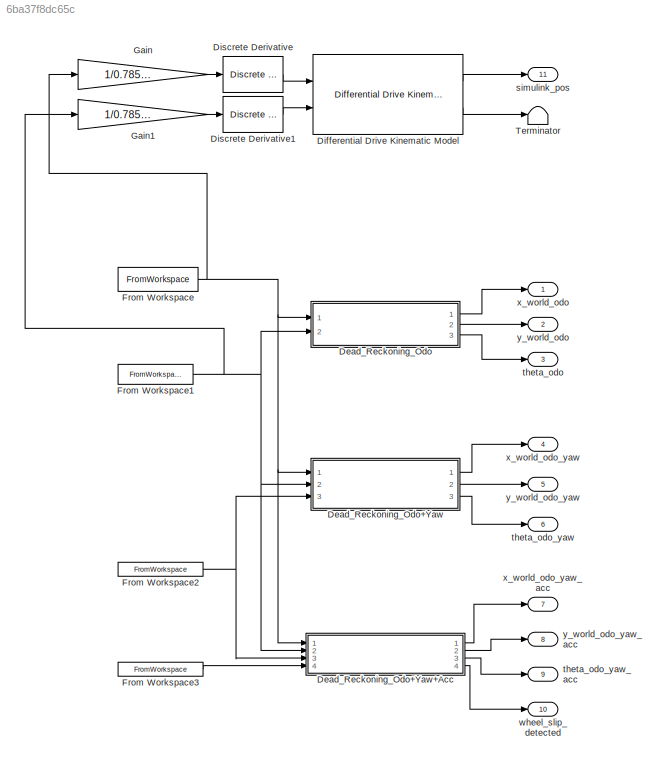
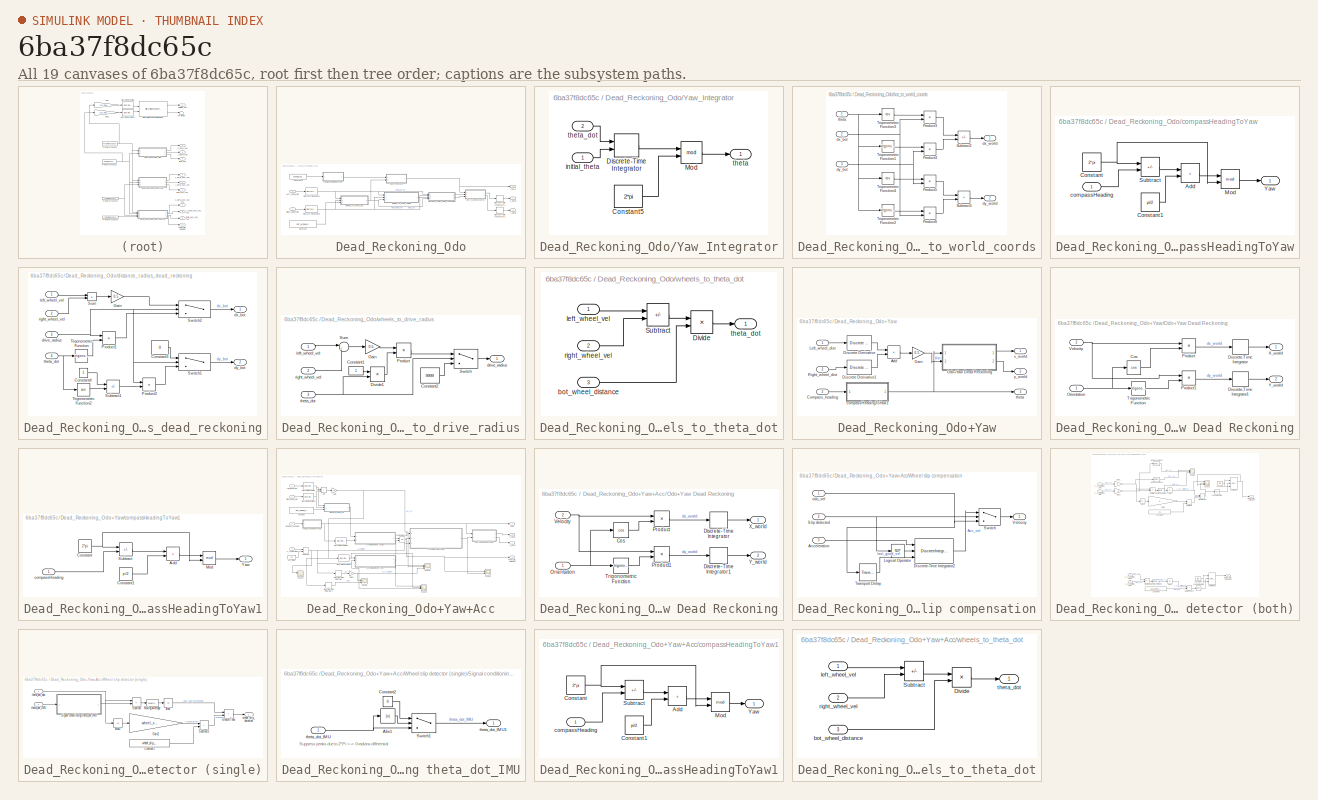
[diagram: thumbnail index - all 19 canvases of the model, root first then tree order]
MODEL slx_6ba37f8dc65c
KIND model
CONFIG AbsTol = auto
CONFIG EnableMultiTasking = off
CONFIG FixedStep = 0.1
CONFIG MaxStep = auto
CONFIG MinStep = auto
CONFIG RelTol = 1e-3
CONFIG SampleTimeConstraint = Unconstrained
CONFIG Solver = FixedStepAuto
CONFIG SolverName = FixedStepAuto
CONFIG StartTime = 0.0
CONFIG StopTime = 31.5
BLOCK [SubSystem] Dead_Reckoning_Odo
  Ports = [2, 3]
  RequestExecContextInheritance = off
BLOCK [SubSystem] Dead_Reckoning_Odo+Yaw
  Ports = [3, 3]
  RequestExecContextInheritance = off
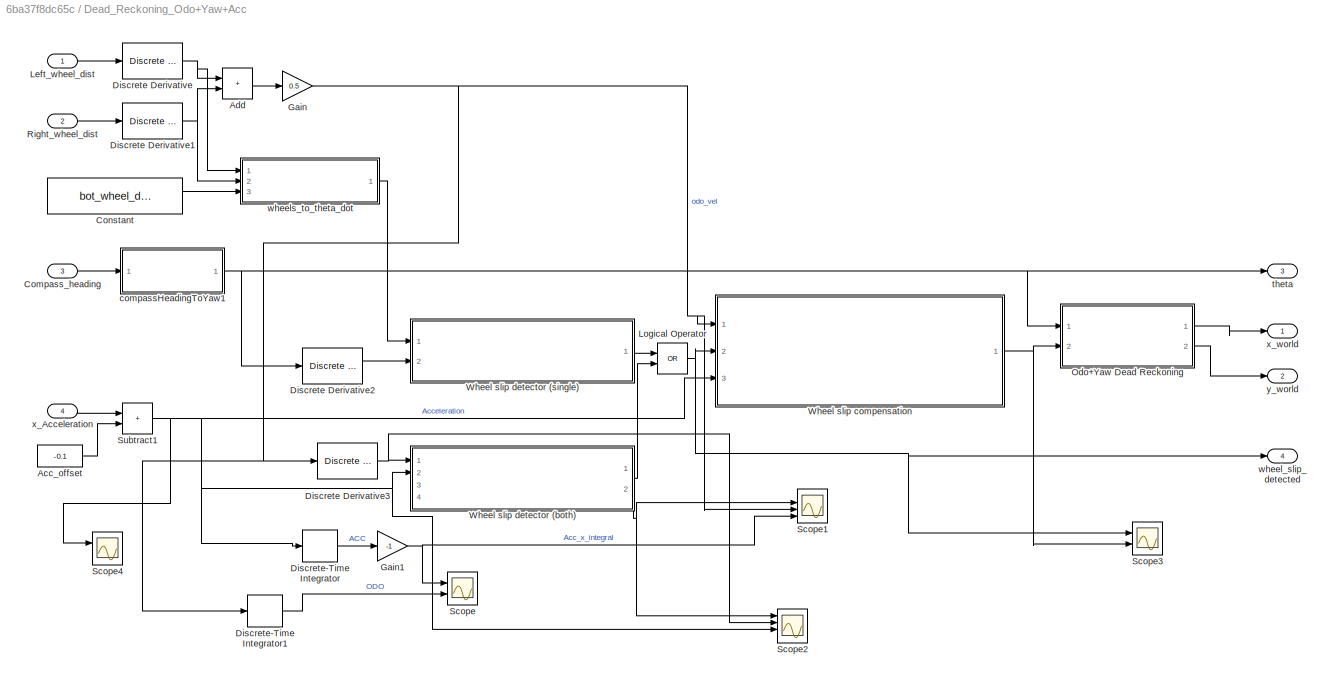
BLOCK [SubSystem] Dead_Reckoning_Odo+Yaw+Acc
  Ports = [4, 4]
  RequestExecContextInheritance = off
BLOCK [Constant] Dead_Reckoning_Odo+Yaw+Acc/Acc_offset
  Value = -0.1
BLOCK [Sum] Dead_Reckoning_Odo+Yaw+Acc/Add
  IconShape = rectangular
  Ports = [2, 1]
BLOCK [Inport] Dead_Reckoning_Odo+Yaw+Acc/Compass_heading
  Port = 3
BLOCK [Constant] Dead_Reckoning_Odo+Yaw+Acc/Constant
  Value = bot_wheel_distance
BLOCK [Reference] Dead_Reckoning_Odo+Yaw+Acc/Discrete Derivative  REF=simulink/Discrete/Discrete Derivative
  Ports = [1, 1]
  SourceBlock = simulink/Discrete/Discrete Derivative
  SourceProductBaseCode = SL
  SourceType = Discrete Derivative
BLOCK [Reference] Dead_Reckoning_Odo+Yaw+Acc/Discrete Derivative1  REF=simulink/Discrete/Discrete Derivative
  Ports = [1, 1]
  SourceBlock = simulink/Discrete/Discrete Derivative
  SourceProductBaseCode = SL
  SourceType = Discrete Derivative
BLOCK [Reference] Dead_Reckoning_Odo+Yaw+Acc/Discrete Derivative2  REF=simulink/Discrete/Discrete Derivative
  Ports = [1, 1]
  SourceBlock = simulink/Discrete/Discrete Derivative
  SourceProductBaseCode = SL
  SourceType = Discrete Derivative
BLOCK [Reference] Dead_Reckoning_Odo+Yaw+Acc/Discrete Derivative3  REF=simulink/Discrete/Discrete Derivative
  Ports = [1, 1]
  SourceBlock = simulink/Discrete/Discrete Derivative
  SourceProductBaseCode = SL
  SourceType = Discrete Derivative
BLOCK [DiscreteIntegrator] Dead_Reckoning_Odo+Yaw+Acc/Discrete-Time Integrator
  ICPrevOutput = DiscIntNeverNeededParam
  ICPrevScaledInput = DiscIntNeverNeededParam
  InitialConditionSetting = Auto
  Ports = [1, 1]
  SampleTime = -1
BLOCK [DiscreteIntegrator] Dead_Reckoning_Odo+Yaw+Acc/Discrete-Time Integrator1
  ICPrevOutput = DiscIntNeverNeededParam
  ICPrevScaledInput = DiscIntNeverNeededParam
  InitialConditionSetting = Auto
  Ports = [1, 1]
  SampleTime = -1
BLOCK [Gain] Dead_Reckoning_Odo+Yaw+Acc/Gain
  Gain = 0.5
BLOCK [Gain] Dead_Reckoning_Odo+Yaw+Acc/Gain1
  Gain = -1
BLOCK [Inport] Dead_Reckoning_Odo+Yaw+Acc/Left_wheel_dist
BLOCK [Logic] Dead_Reckoning_Odo+Yaw+Acc/Logical Operator
  AllPortsSameDT = off
  Operator = OR
  OutDataTypeStr = boolean
  Ports = [2, 1]
BLOCK [SubSystem] Dead_Reckoning_Odo+Yaw+Acc/Odo+Yaw Dead Reckoning
  Ports = [2, 2]
  RequestExecContextInheritance = off
BLOCK [Trigonometry] Dead_Reckoning_Odo+Yaw+Acc/Odo+Yaw Dead Reckoning/Cos
  Operator = cos
  Ports = [1, 1]
BLOCK [DiscreteIntegrator] Dead_Reckoning_Odo+Yaw+Acc/Odo+Yaw Dead Reckoning/Discrete-Time Integrator
  ICPrevOutput = DiscIntNeverNeededParam
  ICPrevScaledInput = DiscIntNeverNeededParam
  InitialConditionSetting = Auto
  Ports = [1, 1]
  SampleTime = -1
BLOCK [DiscreteIntegrator] Dead_Reckoning_Odo+Yaw+Acc/Odo+Yaw Dead Reckoning/Discrete-Time Integrator1
  ICPrevOutput = DiscIntNeverNeededParam
  ICPrevScaledInput = DiscIntNeverNeededParam
  InitialConditionSetting = Auto
  Ports = [1, 1]
  SampleTime = -1
BLOCK [Inport] Dead_Reckoning_Odo+Yaw+Acc/Odo+Yaw Dead Reckoning/Orientation
BLOCK [Product] Dead_Reckoning_Odo+Yaw+Acc/Odo+Yaw Dead Reckoning/Product
  Ports = [2, 1]
BLOCK [Product] Dead_Reckoning_Odo+Yaw+Acc/Odo+Yaw Dead Reckoning/Product1
  Ports = [2, 1]
BLOCK [Trigonometry] Dead_Reckoning_Odo+Yaw+Acc/Odo+Yaw Dead Reckoning/Trigonometric Function
  Ports = [1, 1]
BLOCK [Inport] Dead_Reckoning_Odo+Yaw+Acc/Odo+Yaw Dead Reckoning/Velocity
  Port = 2
BLOCK [Outport] Dead_Reckoning_Odo+Yaw+Acc/Odo+Yaw Dead Reckoning/X_world
BLOCK [Outport] Dead_Reckoning_Odo+Yaw+Acc/Odo+Yaw Dead Reckoning/Y_world
  Port = 2
BLOCK [Inport] Dead_Reckoning_Odo+Yaw+Acc/Right_wheel_dist
  Port = 2
BLOCK [Scope] Dead_Reckoning_Odo+Yaw+Acc/Scope
  Floating = off
  NumInputPorts = 2
  Ports = [2]
  ScopeSpecificationString = Simulink.scopes.TimeScopeBlockCfg('CurrentConfiguration', extmgr.ConfigurationSet(extmgr.Configuration('Core','General UI',true),extmgr.Configuration('Core','Source UI',true),extmgr.Configuration('Sources','WiredSimulink',true,'DataLoggingVariableName','ScopeData1'),extmgr.Configuration('Visuals','Time Domain',true,'SerializedDisplays',{struct('MinYLimReal','-6.11663','MaxYLimReal','6.31768','YLab...<+1404ch>
BLOCK [Scope] Dead_Reckoning_Odo+Yaw+Acc/Scope1
  Floating = off
  NumInputPorts = 4
  Ports = [4]
  ScopeSpecificationString = Simulink.scopes.TimeScopeBlockCfg('CurrentConfiguration', extmgr.ConfigurationSet(extmgr.Configuration('Core','General UI',true),extmgr.Configuration('Core','Source UI',true),extmgr.Configuration('Sources','WiredSimulink',true,'DataLoggingVariableName','ScopeData3'),extmgr.Configuration('Visuals','Time Domain',true,'SerializedDisplays',{struct('MinYLimReal','-0.26246','MaxYLimReal','2.16294','YLab...<+1965ch>
BLOCK [Scope] Dead_Reckoning_Odo+Yaw+Acc/Scope2
  Floating = off
  NumInputPorts = 4
  Ports = [4]
  ScopeSpecificationString = Simulink.scopes.TimeScopeBlockCfg('CurrentConfiguration', extmgr.ConfigurationSet(extmgr.Configuration('Core','General UI',true),extmgr.Configuration('Core','Source UI',true),extmgr.Configuration('Sources','WiredSimulink',true,'DataLoggingVariableName','ScopeData4'),extmgr.Configuration('Visuals','Time Domain',true,'SerializedDisplays',{struct('MinYLimReal','-0.26246','MaxYLimReal','2.16294','YLab...<+1976ch>
BLOCK [Scope] Dead_Reckoning_Odo+Yaw+Acc/Scope3
  Floating = off
  NumInputPorts = 2
  Ports = [2]
  ScopeSpecificationString = Simulink.scopes.TimeScopeBlockCfg('CurrentConfiguration', extmgr.ConfigurationSet(extmgr.Configuration('Core','General UI',true),extmgr.Configuration('Core','Source UI',true),extmgr.Configuration('Sources','WiredSimulink',true,'DataLoggingVariableName','ScopeData2'),extmgr.Configuration('Visuals','Time Domain',true,'SerializedDisplays',{struct('MinYLimReal','-0.42637','MaxYLimReal','1.15849','YLab...<+1401ch>
BLOCK [Scope] Dead_Reckoning_Odo+Yaw+Acc/Scope4
  Floating = off
  NumInputPorts = 2
  Ports = [2]
  ScopeSpecificationString = Simulink.scopes.TimeScopeBlockCfg('CurrentConfiguration', extmgr.ConfigurationSet(extmgr.Configuration('Core','General UI',true),extmgr.Configuration('Core','Source UI',true),extmgr.Configuration('Sources','WiredSimulink',true,'DataLoggingVariableName','ScopeData3'),extmgr.Configuration('Visuals','Time Domain',true,'SerializedDisplays',{struct('MinYLimReal','-1.72105','MaxYLimReal','3.57761','YLab...<+1383ch>
BLOCK [Sum] Dead_Reckoning_Odo+Yaw+Acc/Subtract1
  IconShape = rectangular
  Ports = [2, 1]
BLOCK [SubSystem] Dead_Reckoning_Odo+Yaw+Acc/Wheel slip compensation
  Ports = [3, 1]
  RequestExecContextInheritance = off
BLOCK [Inport] Dead_Reckoning_Odo+Yaw+Acc/Wheel slip compensation/Acceleration
  Port = 3
BLOCK [DiscreteIntegrator] Dead_Reckoning_Odo+Yaw+Acc/Wheel slip compensation/Discrete-Time Integrator2
  ExternalReset = level
  ICPrevOutput = DiscIntNeverNeededParam
  ICPrevScaledInput = DiscIntNeverNeededParam
  InitialConditionSetting = Auto
  InitialConditionSource = external
  Ports = [3, 1]
  SampleTime = -1
BLOCK [Logic] Dead_Reckoning_Odo+Yaw+Acc/Wheel slip compensation/Logical Operator
  AllPortsSameDT = off
  Operator = NOT
  OutDataTypeStr = boolean
  Ports = [1, 1]
BLOCK [Inport] Dead_Reckoning_Odo+Yaw+Acc/Wheel slip compensation/Slip detected
  Port = 2
BLOCK [Switch] Dead_Reckoning_Odo+Yaw+Acc/Wheel slip compensation/Switch
  Criteria = u2 > Threshold
  InputSameDT = off
  SaturateOnIntegerOverflow = off
BLOCK [TransportDelay] Dead_Reckoning_Odo+Yaw+Acc/Wheel slip compensation/Transport Delay
  DelayTime = 0.5
  Ports = [1, 1]
BLOCK [Outport] Dead_Reckoning_Odo+Yaw+Acc/Wheel slip compensation/Velocity
BLOCK [Inport] Dead_Reckoning_Odo+Yaw+Acc/Wheel slip compensation/odo_vel
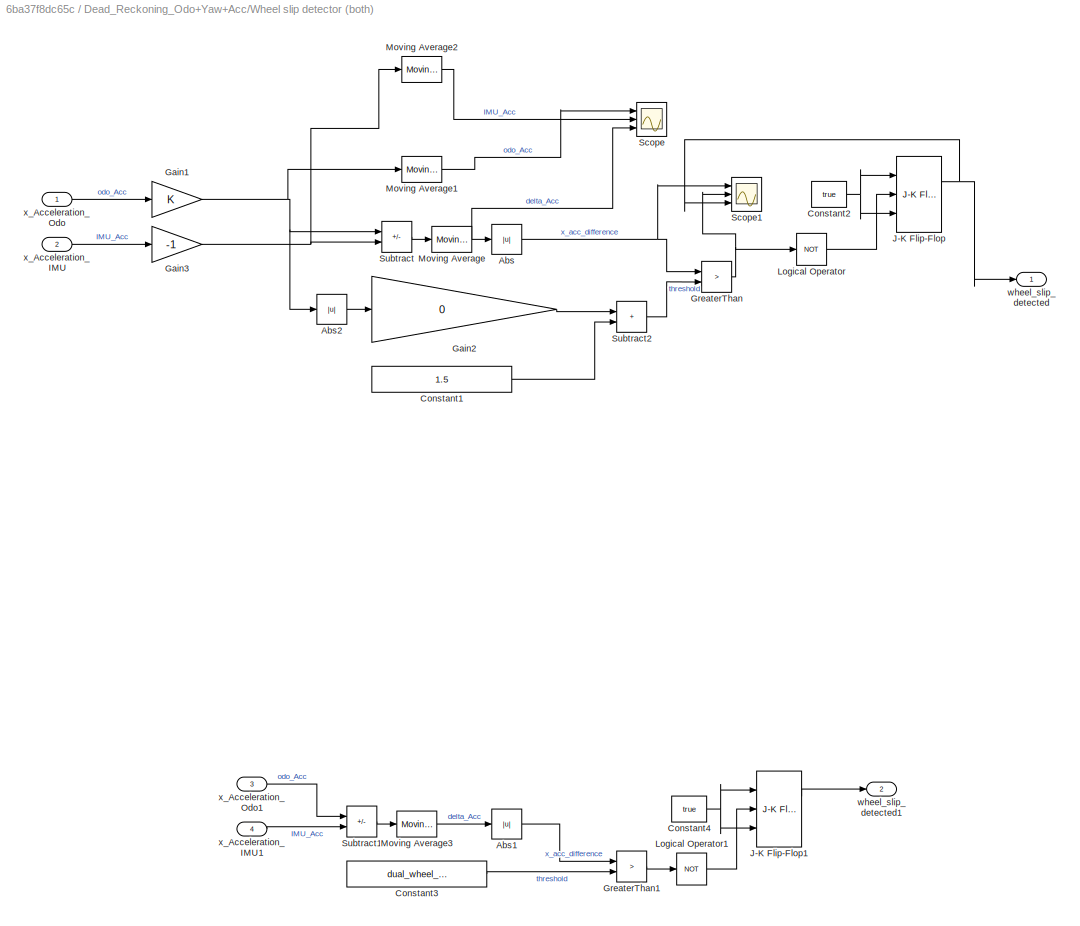
BLOCK [SubSystem] Dead_Reckoning_Odo+Yaw+Acc/Wheel slip detector (both)
  Ports = [4, 2]
  RequestExecContextInheritance = off
BLOCK [Abs] Dead_Reckoning_Odo+Yaw+Acc/Wheel slip detector (both)/Abs
  SaturateOnIntegerOverflow = off
BLOCK [Abs] Dead_Reckoning_Odo+Yaw+Acc/Wheel slip detector (both)/Abs1
  SaturateOnIntegerOverflow = off
BLOCK [Abs] Dead_Reckoning_Odo+Yaw+Acc/Wheel slip detector (both)/Abs2
  SaturateOnIntegerOverflow = off
BLOCK [Constant] Dead_Reckoning_Odo+Yaw+Acc/Wheel slip detector (both)/Constant1
  Value = 1.5
BLOCK [Constant] Dead_Reckoning_Odo+Yaw+Acc/Wheel slip detector (both)/Constant2
  Value = true
BLOCK [Constant] Dead_Reckoning_Odo+Yaw+Acc/Wheel slip detector (both)/Constant3
  Value = dual_wheel_slip_acc_thres
BLOCK [Constant] Dead_Reckoning_Odo+Yaw+Acc/Wheel slip detector (both)/Constant4
  Value = true
BLOCK [Gain] Dead_Reckoning_Odo+Yaw+Acc/Wheel slip detector (both)/Gain1
BLOCK [Gain] Dead_Reckoning_Odo+Yaw+Acc/Wheel slip detector (both)/Gain2
  Gain = 0
BLOCK [Gain] Dead_Reckoning_Odo+Yaw+Acc/Wheel slip detector (both)/Gain3
  Gain = -1
BLOCK [RelationalOperator] Dead_Reckoning_Odo+Yaw+Acc/Wheel slip detector (both)/GreaterThan
  InputSameDT = off
  Operator = >
  OutDataTypeStr = boolean
  Ports = [2, 1]
  RndMeth = Simplest
BLOCK [RelationalOperator] Dead_Reckoning_Odo+Yaw+Acc/Wheel slip detector (both)/GreaterThan1
  InputSameDT = off
  Operator = >
  OutDataTypeStr = boolean
  Ports = [2, 1]
  RndMeth = Simplest
BLOCK [Reference] Dead_Reckoning_Odo+Yaw+Acc/Wheel slip detector (both)/J-K Flip-Flop  REF=simulink_extras/Flip Flops/J-K
Flip-Flop
  Ports = [3, 2]
  SourceBlock = simulink_extras/Flip Flops/J-K\nFlip-Flop
  SourceProductBaseCode = SL
  SourceType = JKFlipFlop
BLOCK [Reference] Dead_Reckoning_Odo+Yaw+Acc/Wheel slip detector (both)/J-K Flip-Flop1  REF=simulink_extras/Flip Flops/J-K
Flip-Flop
  Ports = [3, 2]
  SourceBlock = simulink_extras/Flip Flops/J-K\nFlip-Flop
  SourceProductBaseCode = SL
  SourceType = JKFlipFlop
BLOCK [Logic] Dead_Reckoning_Odo+Yaw+Acc/Wheel slip detector (both)/Logical Operator
  AllPortsSameDT = off
  Operator = NOT
  OutDataTypeStr = boolean
  Ports = [1, 1]
BLOCK [Logic] Dead_Reckoning_Odo+Yaw+Acc/Wheel slip detector (both)/Logical Operator1
  AllPortsSameDT = off
  Operator = NOT
  OutDataTypeStr = boolean
  Ports = [1, 1]
BLOCK [Reference] Dead_Reckoning_Odo+Yaw+Acc/Wheel slip detector (both)/Moving Average  REF=dspstat3/Moving
Average
  Ports = [1, 1]
  SourceBlock = dspstat3/Moving\nAverage
  SourceProductBaseCode = DS
  SourceType = dsp.simulink.MovingAverage
BLOCK [Reference] Dead_Reckoning_Odo+Yaw+Acc/Wheel slip detector (both)/Moving Average1  REF=dspstat3/Moving
Average
  Ports = [1, 1]
  SourceBlock = dspstat3/Moving\nAverage
  SourceProductBaseCode = DS
  SourceType = dsp.simulink.MovingAverage
BLOCK [Reference] Dead_Reckoning_Odo+Yaw+Acc/Wheel slip detector (both)/Moving Average2  REF=dspstat3/Moving
Average
  Ports = [1, 1]
  SourceBlock = dspstat3/Moving\nAverage
  SourceProductBaseCode = DS
  SourceType = dsp.simulink.MovingAverage
BLOCK [Reference] Dead_Reckoning_Odo+Yaw+Acc/Wheel slip detector (both)/Moving Average3  REF=dspstat3/Moving
Average
  Ports = [1, 1]
  SourceBlock = dspstat3/Moving\nAverage
  SourceProductBaseCode = DS
  SourceType = dsp.simulink.MovingAverage
BLOCK [Scope] Dead_Reckoning_Odo+Yaw+Acc/Wheel slip detector (both)/Scope
  Floating = off
  NumInputPorts = 3
  Ports = [3]
  ScopeSpecificationString = Simulink.scopes.TimeScopeBlockCfg('CurrentConfiguration', extmgr.ConfigurationSet(extmgr.Configuration('Core','General UI',true,'FigureColor',[1 1 1]),extmgr.Configuration('Core','Source UI',true),extmgr.Configuration('Sources','WiredSimulink',true,'DataLoggingVariableName','ScopeData1'),extmgr.Configuration('Visuals','Time Domain',true,'SerializedDisplays',{struct('MinYLimReal','-3.93387','MaxYLi...<+1865ch>
BLOCK [Scope] Dead_Reckoning_Odo+Yaw+Acc/Wheel slip detector (both)/Scope1
  Floating = off
  NumInputPorts = 3
  Ports = [3]
  ScopeSpecificationString = Simulink.scopes.TimeScopeBlockCfg('CurrentConfiguration', extmgr.ConfigurationSet(extmgr.Configuration('Core','General UI',true),extmgr.Configuration('Core','Source UI',true),extmgr.Configuration('Sources','WiredSimulink',true,'DataLoggingVariableName','ScopeData2'),extmgr.Configuration('Visuals','Time Domain',true,'SerializedDisplays',{struct('MinYLimReal','-0.69953','MaxYLimReal','6.29575','YLab...<+1478ch>
BLOCK [Sum] Dead_Reckoning_Odo+Yaw+Acc/Wheel slip detector (both)/Subtract
  IconShape = rectangular
  Inputs = +-
  Ports = [2, 1]
BLOCK [Sum] Dead_Reckoning_Odo+Yaw+Acc/Wheel slip detector (both)/Subtract1
  IconShape = rectangular
  Inputs = +-
  Ports = [2, 1]
BLOCK [Sum] Dead_Reckoning_Odo+Yaw+Acc/Wheel slip detector (both)/Subtract2
  IconShape = rectangular
  Ports = [2, 1]
BLOCK [Outport] Dead_Reckoning_Odo+Yaw+Acc/Wheel slip detector (both)/wheel_slip_detected
BLOCK [Outport] Dead_Reckoning_Odo+Yaw+Acc/Wheel slip detector (both)/wheel_slip_detected1
  Port = 2
BLOCK [Inport] Dead_Reckoning_Odo+Yaw+Acc/Wheel slip detector (both)/x_Acceleration_IMU
  Port = 2
BLOCK [Inport] Dead_Reckoning_Odo+Yaw+Acc/Wheel slip detector (both)/x_Acceleration_IMU1
  Port = 4
BLOCK [Inport] Dead_Reckoning_Odo+Yaw+Acc/Wheel slip detector (both)/x_Acceleration_Odo
BLOCK [Inport] Dead_Reckoning_Odo+Yaw+Acc/Wheel slip detector (both)/x_Acceleration_Odo1
  Port = 3
BLOCK [SubSystem] Dead_Reckoning_Odo+Yaw+Acc/Wheel slip detector (single)
  Ports = [2, 1]
  RequestExecContextInheritance = off
BLOCK [Abs] Dead_Reckoning_Odo+Yaw+Acc/Wheel slip detector (single)/Abs
  SaturateOnIntegerOverflow = off
BLOCK [Abs] Dead_Reckoning_Odo+Yaw+Acc/Wheel slip detector (single)/Abs2
  SaturateOnIntegerOverflow = off
BLOCK [Constant] Dead_Reckoning_Odo+Yaw+Acc/Wheel slip detector (single)/Constant1
  Value = wheel_slip_detection_thres
BLOCK [Gain] Dead_Reckoning_Odo+Yaw+Acc/Wheel slip detector (single)/Gain2
  Gain = wheel_slip_detection_thres_factor
BLOCK [RelationalOperator] Dead_Reckoning_Odo+Yaw+Acc/Wheel slip detector (single)/GreaterThan
  InputSameDT = off
  Operator = >
  OutDataTypeStr = boolean
  Ports = [2, 1]
  RndMeth = Simplest
BLOCK [Reference] Dead_Reckoning_Odo+Yaw+Acc/Wheel slip detector (single)/Moving Average  REF=dspstat3/Moving
Average
  Ports = [1, 1]
  SourceBlock = dspstat3/Moving\nAverage
  SourceProductBaseCode = DS
  SourceType = dsp.simulink.MovingAverage
BLOCK [SubSystem] Dead_Reckoning_Odo+Yaw+Acc/Wheel slip detector (single)/Signal conditioning theta_dot_IMU
  Ports = [1, 1]
  RequestExecContextInheritance = off
BLOCK [Abs] Dead_Reckoning_Odo+Yaw+Acc/Wheel slip detector (single)/Signal conditioning theta_dot_IMU/Abs1
  SaturateOnIntegerOverflow = off
BLOCK [Constant] Dead_Reckoning_Odo+Yaw+Acc/Wheel slip detector (single)/Signal conditioning theta_dot_IMU/Constant2
  Value = 0
BLOCK [Switch] Dead_Reckoning_Odo+Yaw+Acc/Wheel slip detector (single)/Signal conditioning theta_dot_IMU/Switch1
  Criteria = u2 > Threshold
  InputSameDT = off
  SaturateOnIntegerOverflow = off
  Threshold = 2
BLOCK [Inport] Dead_Reckoning_Odo+Yaw+Acc/Wheel slip detector (single)/Signal conditioning theta_dot_IMU/theta_dot_IMU
BLOCK [Outport] Dead_Reckoning_Odo+Yaw+Acc/Wheel slip detector (single)/Signal conditioning theta_dot_IMU/theta_dot_IMU1
BLOCK [Sum] Dead_Reckoning_Odo+Yaw+Acc/Wheel slip detector (single)/Subtract
  IconShape = rectangular
  Inputs = +-
  Ports = [2, 1]
BLOCK [Sum] Dead_Reckoning_Odo+Yaw+Acc/Wheel slip detector (single)/Subtract2
  IconShape = rectangular
  Ports = [2, 1]
BLOCK [Inport] Dead_Reckoning_Odo+Yaw+Acc/Wheel slip detector (single)/theta_dot_IMU
  Port = 2
BLOCK [Inport] Dead_Reckoning_Odo+Yaw+Acc/Wheel slip detector (single)/theta_dot_odo
BLOCK [Outport] Dead_Reckoning_Odo+Yaw+Acc/Wheel slip detector (single)/wheel_slip_detected
BLOCK [SubSystem] Dead_Reckoning_Odo+Yaw+Acc/compassHeadingToYaw1
  Ports = [1, 1]
  RequestExecContextInheritance = off
BLOCK [Sum] Dead_Reckoning_Odo+Yaw+Acc/compassHeadingToYaw1/Add
  IconShape = rectangular
  Ports = [2, 1]
BLOCK [Constant] Dead_Reckoning_Odo+Yaw+Acc/compassHeadingToYaw1/Constant
  Value = 2*pi
BLOCK [Constant] Dead_Reckoning_Odo+Yaw+Acc/compassHeadingToYaw1/Constant1
  Value = pi/2
BLOCK [Math] Dead_Reckoning_Odo+Yaw+Acc/compassHeadingToYaw1/Mod
  Operator = mod
  Ports = [2, 1]
BLOCK [Sum] Dead_Reckoning_Odo+Yaw+Acc/compassHeadingToYaw1/Subtract
  IconShape = rectangular
  Inputs = +-
  Ports = [2, 1]
BLOCK [Outport] Dead_Reckoning_Odo+Yaw+Acc/compassHeadingToYaw1/Yaw
BLOCK [Inport] Dead_Reckoning_Odo+Yaw+Acc/compassHeadingToYaw1/compassHeading
BLOCK [Outport] Dead_Reckoning_Odo+Yaw+Acc/theta
  Port = 3
BLOCK [Outport] Dead_Reckoning_Odo+Yaw+Acc/wheel_slip_detected
  LockScale = on
  OutDataTypeStr = boolean
  Port = 4
BLOCK [SubSystem] Dead_Reckoning_Odo+Yaw+Acc/wheels_to_theta_dot
  Ports = [3, 1]
  RequestExecContextInheritance = off
BLOCK [Product] Dead_Reckoning_Odo+Yaw+Acc/wheels_to_theta_dot/Divide
  Inputs = */
  Ports = [2, 1]
BLOCK [Sum] Dead_Reckoning_Odo+Yaw+Acc/wheels_to_theta_dot/Subtract
  IconShape = rectangular
  Inputs = -+
  Ports = [2, 1]
BLOCK [Inport] Dead_Reckoning_Odo+Yaw+Acc/wheels_to_theta_dot/bot_wheel_distance
  Port = 3
BLOCK [Inport] Dead_Reckoning_Odo+Yaw+Acc/wheels_to_theta_dot/left_wheel_vel
BLOCK [Inport] Dead_Reckoning_Odo+Yaw+Acc/wheels_to_theta_dot/right_wheel_vel
  Port = 2
BLOCK [Outport] Dead_Reckoning_Odo+Yaw+Acc/wheels_to_theta_dot/theta_dot
BLOCK [Inport] Dead_Reckoning_Odo+Yaw+Acc/x_Acceleration
  Port = 4
BLOCK [Outport] Dead_Reckoning_Odo+Yaw+Acc/x_world
BLOCK [Outport] Dead_Reckoning_Odo+Yaw+Acc/y_world
  Port = 2
BLOCK [Sum] Dead_Reckoning_Odo+Yaw/Add
  IconShape = rectangular
  Ports = [2, 1]
BLOCK [Inport] Dead_Reckoning_Odo+Yaw/Compass_heading
  Port = 3
BLOCK [Reference] Dead_Reckoning_Odo+Yaw/Discrete Derivative  REF=simulink/Discrete/Discrete Derivative
  Ports = [1, 1]
  SourceBlock = simulink/Discrete/Discrete Derivative
  SourceProductBaseCode = SL
  SourceType = Discrete Derivative
BLOCK [Reference] Dead_Reckoning_Odo+Yaw/Discrete Derivative1  REF=simulink/Discrete/Discrete Derivative
  Ports = [1, 1]
  SourceBlock = simulink/Discrete/Discrete Derivative
  SourceProductBaseCode = SL
  SourceType = Discrete Derivative
BLOCK [Gain] Dead_Reckoning_Odo+Yaw/Gain
  Gain = 0.5
BLOCK [Inport] Dead_Reckoning_Odo+Yaw/Left_wheel_dist
BLOCK [SubSystem] Dead_Reckoning_Odo+Yaw/Odo+Yaw Dead Reckoning
  Ports = [2, 2]
  RequestExecContextInheritance = off
BLOCK [Trigonometry] Dead_Reckoning_Odo+Yaw/Odo+Yaw Dead Reckoning/Cos
  Operator = cos
  Ports = [1, 1]
BLOCK [DiscreteIntegrator] Dead_Reckoning_Odo+Yaw/Odo+Yaw Dead Reckoning/Discrete-Time Integrator
  ICPrevOutput = DiscIntNeverNeededParam
  ICPrevScaledInput = DiscIntNeverNeededParam
  InitialConditionSetting = Auto
  Ports = [1, 1]
  SampleTime = -1
BLOCK [DiscreteIntegrator] Dead_Reckoning_Odo+Yaw/Odo+Yaw Dead Reckoning/Discrete-Time Integrator1
  ICPrevOutput = DiscIntNeverNeededParam
  ICPrevScaledInput = DiscIntNeverNeededParam
  InitialConditionSetting = Auto
  Ports = [1, 1]
  SampleTime = -1
BLOCK [Inport] Dead_Reckoning_Odo+Yaw/Odo+Yaw Dead Reckoning/Orientation
BLOCK [Product] Dead_Reckoning_Odo+Yaw/Odo+Yaw Dead Reckoning/Product
  Ports = [2, 1]
BLOCK [Product] Dead_Reckoning_Odo+Yaw/Odo+Yaw Dead Reckoning/Product1
  Ports = [2, 1]
BLOCK [Trigonometry] Dead_Reckoning_Odo+Yaw/Odo+Yaw Dead Reckoning/Trigonometric Function
  Ports = [1, 1]
BLOCK [Inport] Dead_Reckoning_Odo+Yaw/Odo+Yaw Dead Reckoning/Velocity
  Port = 2
BLOCK [Outport] Dead_Reckoning_Odo+Yaw/Odo+Yaw Dead Reckoning/X_world
BLOCK [Outport] Dead_Reckoning_Odo+Yaw/Odo+Yaw Dead Reckoning/Y_world
  Port = 2
BLOCK [Inport] Dead_Reckoning_Odo+Yaw/Right_wheel_dist
  Port = 2
BLOCK [SubSystem] Dead_Reckoning_Odo+Yaw/compassHeadingToYaw1
  Ports = [1, 1]
  RequestExecContextInheritance = off
BLOCK [Sum] Dead_Reckoning_Odo+Yaw/compassHeadingToYaw1/Add
  IconShape = rectangular
  Ports = [2, 1]
BLOCK [Constant] Dead_Reckoning_Odo+Yaw/compassHeadingToYaw1/Constant
  Value = 2*pi
BLOCK [Constant] Dead_Reckoning_Odo+Yaw/compassHeadingToYaw1/Constant1
  Value = pi/2
BLOCK [Math] Dead_Reckoning_Odo+Yaw/compassHeadingToYaw1/Mod
  Operator = mod
  Ports = [2, 1]
BLOCK [Sum] Dead_Reckoning_Odo+Yaw/compassHeadingToYaw1/Subtract
  IconShape = rectangular
  Inputs = +-
  Ports = [2, 1]
BLOCK [Outport] Dead_Reckoning_Odo+Yaw/compassHeadingToYaw1/Yaw
BLOCK [Inport] Dead_Reckoning_Odo+Yaw/compassHeadingToYaw1/compassHeading
BLOCK [Outport] Dead_Reckoning_Odo+Yaw/theta
  Port = 3
BLOCK [Outport] Dead_Reckoning_Odo+Yaw/x_world
BLOCK [Outport] Dead_Reckoning_Odo+Yaw/y_world
  Port = 2
BLOCK [Constant] Dead_Reckoning_Odo/Constant
  Value = bot_wheel_distance
BLOCK [Constant] Dead_Reckoning_Odo/Constant6
  Value = heading_initial
BLOCK [Reference] Dead_Reckoning_Odo/Discrete Derivative  REF=simulink/Discrete/Discrete Derivative
  AttributesFormatString = %<Name>
  Ports = [1, 1]
  SourceBlock = simulink/Discrete/Discrete Derivative
  SourceProductBaseCode = SL
  SourceType = Discrete Derivative
BLOCK [Reference] Dead_Reckoning_Odo/Discrete Derivative1  REF=simulink/Discrete/Discrete Derivative
  AttributesFormatString = %<Name>
  Ports = [1, 1]
  SourceBlock = simulink/Discrete/Discrete Derivative
  SourceProductBaseCode = SL
  SourceType = Discrete Derivative
BLOCK [DiscreteIntegrator] Dead_Reckoning_Odo/Discrete-Time Integrator1
  AttributesFormatString = %<Name>
  ICPrevOutput = DiscIntNeverNeededParam
  ICPrevScaledInput = DiscIntNeverNeededParam
  InitialConditionSetting = Auto
  Ports = [1, 1]
  SampleTime = -1
BLOCK [DiscreteIntegrator] Dead_Reckoning_Odo/Discrete-Time Integrator2
  AttributesFormatString = %<Name>
  ICPrevOutput = DiscIntNeverNeededParam
  ICPrevScaledInput = DiscIntNeverNeededParam
  InitialConditionSetting = Auto
  Ports = [1, 1]
  SampleTime = -1
BLOCK [Inport] Dead_Reckoning_Odo/Left_wheel_dist
BLOCK [Inport] Dead_Reckoning_Odo/Right_wheel_dist
  Port = 2
BLOCK [SubSystem] Dead_Reckoning_Odo/Yaw_Integrator
  Ports = [2, 1]
  RequestExecContextInheritance = off
BLOCK [Constant] Dead_Reckoning_Odo/Yaw_Integrator/Constant5
  Value = 2*pi
BLOCK [DiscreteIntegrator] Dead_Reckoning_Odo/Yaw_Integrator/Discrete-Time Integrator
  AttributesFormatString = %<Name>
  ICPrevOutput = DiscIntNeverNeededParam
  ICPrevScaledInput = DiscIntNeverNeededParam
  InitialCondition = theta_initial
  InitialConditionSetting = Auto
  InitialConditionSource = external
  Ports = [2, 1]
  SampleTime = -1
BLOCK [Math] Dead_Reckoning_Odo/Yaw_Integrator/Mod
  Operator = mod
  Ports = [2, 1]
BLOCK [Inport] Dead_Reckoning_Odo/Yaw_Integrator/initial_theta
BLOCK [Outport] Dead_Reckoning_Odo/Yaw_Integrator/theta
BLOCK [Inport] Dead_Reckoning_Odo/Yaw_Integrator/theta_dot
  Port = 2
BLOCK [SubSystem] Dead_Reckoning_Odo/bot_to_world_coords
  Ports = [3, 2]
  RequestExecContextInheritance = off
BLOCK [Product] Dead_Reckoning_Odo/bot_to_world_coords/Product3
  Ports = [2, 1]
BLOCK [Product] Dead_Reckoning_Odo/bot_to_world_coords/Product4
  Ports = [2, 1]
BLOCK [Product] Dead_Reckoning_Odo/bot_to_world_coords/Product5
  Ports = [2, 1]
BLOCK [Product] Dead_Reckoning_Odo/bot_to_world_coords/Product6
  Ports = [2, 1]
BLOCK [Sum] Dead_Reckoning_Odo/bot_to_world_coords/Subtract2
  IconShape = rectangular
  Inputs = +-
  Ports = [2, 1]
BLOCK [Sum] Dead_Reckoning_Odo/bot_to_world_coords/Subtract3
  IconShape = rectangular
  Ports = [2, 1]
BLOCK [Trigonometry] Dead_Reckoning_Odo/bot_to_world_coords/Trigonometric Function1
  Ports = [1, 1]
BLOCK [Trigonometry] Dead_Reckoning_Odo/bot_to_world_coords/Trigonometric Function2
  Ports = [1, 1]
BLOCK [Trigonometry] Dead_Reckoning_Odo/bot_to_world_coords/Trigonometric Function3
  Operator = cos
  Ports = [1, 1]
BLOCK [Trigonometry] Dead_Reckoning_Odo/bot_to_world_coords/Trigonometric Function4
  Operator = cos
  Ports = [1, 1]
BLOCK [Inport] Dead_Reckoning_Odo/bot_to_world_coords/dx_bot
  Port = 2
BLOCK [Outport] Dead_Reckoning_Odo/bot_to_world_coords/dx_world
BLOCK [Inport] Dead_Reckoning_Odo/bot_to_world_coords/dy_bot
  Port = 3
BLOCK [Outport] Dead_Reckoning_Odo/bot_to_world_coords/dy_world
  Port = 2
BLOCK [Inport] Dead_Reckoning_Odo/bot_to_world_coords/theta
BLOCK [SubSystem] Dead_Reckoning_Odo/compassHeadingToYaw
  Ports = [1, 1]
  RequestExecContextInheritance = off
BLOCK [Sum] Dead_Reckoning_Odo/compassHeadingToYaw/Add
  IconShape = rectangular
  Ports = [2, 1]
BLOCK [Constant] Dead_Reckoning_Odo/compassHeadingToYaw/Constant
  Value = 2*pi
BLOCK [Constant] Dead_Reckoning_Odo/compassHeadingToYaw/Constant1
  Value = pi/2
BLOCK [Math] Dead_Reckoning_Odo/compassHeadingToYaw/Mod
  Operator = mod
  Ports = [2, 1]
BLOCK [Sum] Dead_Reckoning_Odo/compassHeadingToYaw/Subtract
  IconShape = rectangular
  Inputs = +-
  Ports = [2, 1]
BLOCK [Outport] Dead_Reckoning_Odo/compassHeadingToYaw/Yaw
BLOCK [Inport] Dead_Reckoning_Odo/compassHeadingToYaw/compassHeading
BLOCK [SubSystem] Dead_Reckoning_Odo/distance_radius_dead_reckoning
  Ports = [4, 2]
  RequestExecContextInheritance = off
BLOCK [Constant] Dead_Reckoning_Odo/distance_radius_dead_reckoning/Constant3
  Value = 0
BLOCK [Constant] Dead_Reckoning_Odo/distance_radius_dead_reckoning/Constant4
BLOCK [Gain] Dead_Reckoning_Odo/distance_radius_dead_reckoning/Gain
  Gain = 0.5
BLOCK [Product] Dead_Reckoning_Odo/distance_radius_dead_reckoning/Product1
  Ports = [2, 1]
BLOCK [Product] Dead_Reckoning_Odo/distance_radius_dead_reckoning/Product2
  Ports = [2, 1]
BLOCK [Sum] Dead_Reckoning_Odo/distance_radius_dead_reckoning/Subtract1
  IconShape = rectangular
  Inputs = +-
  Ports = [2, 1]
BLOCK [Sum] Dead_Reckoning_Odo/distance_radius_dead_reckoning/Sum
  IconShape = rectangular
  Ports = [2, 1]
BLOCK [Switch] Dead_Reckoning_Odo/distance_radius_dead_reckoning/Switch1
  InputSameDT = off
  SaturateOnIntegerOverflow = off
  Threshold = 100
BLOCK [Switch] Dead_Reckoning_Odo/distance_radius_dead_reckoning/Switch2
  InputSameDT = off
  SaturateOnIntegerOverflow = off
  Threshold = 100
BLOCK [Trigonometry] Dead_Reckoning_Odo/distance_radius_dead_reckoning/Trigonometric Function
  Ports = [1, 1]
BLOCK [Trigonometry] Dead_Reckoning_Odo/distance_radius_dead_reckoning/Trigonometric Function2
  Operator = cos
  Ports = [1, 1]
BLOCK [Inport] Dead_Reckoning_Odo/distance_radius_dead_reckoning/drive_radius
  Port = 3
BLOCK [Outport] Dead_Reckoning_Odo/distance_radius_dead_reckoning/dx_bot
BLOCK [Outport] Dead_Reckoning_Odo/distance_radius_dead_reckoning/dy_bot
  Port = 2
BLOCK [Inport] Dead_Reckoning_Odo/distance_radius_dead_reckoning/left_wheel_vel
BLOCK [Inport] Dead_Reckoning_Odo/distance_radius_dead_reckoning/right_wheel_vel
  Port = 2
BLOCK [Inport] Dead_Reckoning_Odo/distance_radius_dead_reckoning/theta_dot
  Port = 4
BLOCK [Outport] Dead_Reckoning_Odo/theta
  Port = 3
BLOCK [SubSystem] Dead_Reckoning_Odo/wheels_to_drive_radius
  Ports = [3, 1]
  RequestExecContextInheritance = off
BLOCK [Constant] Dead_Reckoning_Odo/wheels_to_drive_radius/Constant1
BLOCK [Constant] Dead_Reckoning_Odo/wheels_to_drive_radius/Constant2
  Value = 9999
BLOCK [Product] Dead_Reckoning_Odo/wheels_to_drive_radius/Divide1
  Inputs = */
  Ports = [2, 1]
BLOCK [Gain] Dead_Reckoning_Odo/wheels_to_drive_radius/Gain
  Gain = 0.5
BLOCK [Product] Dead_Reckoning_Odo/wheels_to_drive_radius/Product
  Ports = [2, 1]
BLOCK [Sum] Dead_Reckoning_Odo/wheels_to_drive_radius/Sum
  Inputs = |++
  Ports = [2, 1]
BLOCK [Switch] Dead_Reckoning_Odo/wheels_to_drive_radius/Switch
  Criteria = u2 ~= 0
  InputSameDT = off
  SaturateOnIntegerOverflow = off
BLOCK [Outport] Dead_Reckoning_Odo/wheels_to_drive_radius/drive_radius
BLOCK [Inport] Dead_Reckoning_Odo/wheels_to_drive_radius/left_wheel_vel
BLOCK [Inport] Dead_Reckoning_Odo/wheels_to_drive_radius/right_wheel_vel
  Port = 2
BLOCK [Inport] Dead_Reckoning_Odo/wheels_to_drive_radius/theta_dot
  Port = 3
BLOCK [SubSystem] Dead_Reckoning_Odo/wheels_to_theta_dot
  Ports = [3, 1]
  RequestExecContextInheritance = off
BLOCK [Product] Dead_Reckoning_Odo/wheels_to_theta_dot/Divide
  Inputs = */
  Ports = [2, 1]
BLOCK [Sum] Dead_Reckoning_Odo/wheels_to_theta_dot/Subtract
  IconShape = rectangular
  Inputs = -+
  Ports = [2, 1]
BLOCK [Inport] Dead_Reckoning_Odo/wheels_to_theta_dot/bot_wheel_distance
  Port = 3
BLOCK [Inport] Dead_Reckoning_Odo/wheels_to_theta_dot/left_wheel_vel
BLOCK [Inport] Dead_Reckoning_Odo/wheels_to_theta_dot/right_wheel_vel
  Port = 2
BLOCK [Outport] Dead_Reckoning_Odo/wheels_to_theta_dot/theta_dot
BLOCK [Outport] Dead_Reckoning_Odo/x_world
BLOCK [Outport] Dead_Reckoning_Odo/y_world
  Port = 2
BLOCK [Reference] Differential Drive Kinematic Model  REF=robotmobilelib/Differential Drive Kinematic Model
  Ports = [2, 2]
  SourceBlock = robotmobilelib/Differential Drive Kinematic Model
  SourceProductBaseCode = RO
  SourceType = Differential Drive Kinematic Model
BLOCK [Reference] Discrete Derivative  REF=simulink/Discrete/Discrete Derivative
  Ports = [1, 1]
  SourceBlock = simulink/Discrete/Discrete Derivative
  SourceProductBaseCode = SL
  SourceType = Discrete Derivative
BLOCK [Reference] Discrete Derivative1  REF=simulink/Discrete/Discrete Derivative
  Ports = [1, 1]
  SourceBlock = simulink/Discrete/Discrete Derivative
  SourceProductBaseCode = SL
  SourceType = Discrete Derivative
BLOCK [FromWorkspace] From Workspace
  VariableName = Left_wheel_dist
BLOCK [FromWorkspace] From Workspace1
  VariableName = Right_wheel_dist
BLOCK [FromWorkspace] From Workspace2
  VariableName = Compass_heading
BLOCK [FromWorkspace] From Workspace3
  VariableName = Acc_x
BLOCK [Gain] Gain
  Gain = 1/0.785*2*pi
BLOCK [Gain] Gain1
  Gain = 1/0.785*2*pi
BLOCK [Terminator] Terminator
BLOCK [Outport] simulink_pos
  Port = 11
BLOCK [Outport] theta_odo
  Port = 3
BLOCK [Outport] theta_odo_yaw
  Port = 6
BLOCK [Outport] theta_odo_yaw_acc
  Port = 9
BLOCK [Outport] wheel_slip_detected
  Port = 10
BLOCK [Outport] x_world_odo
BLOCK [Outport] x_world_odo_yaw
  Port = 4
BLOCK [Outport] x_world_odo_yaw_acc
  Port = 7
BLOCK [Outport] y_world_odo
  Port = 2
BLOCK [Outport] y_world_odo_yaw
  Port = 5
BLOCK [Outport] y_world_odo_yaw_acc
  Port = 8
ANNOTATION Dead_Reckoning_Odo+Yaw+Acc/Wheel slip detector (single)/Signal conditioning theta_dot_IMU: Suppress peaks due to 2*Pi 0 radians differential
LINE Dead_Reckoning_Odo+Yaw+Acc/Acc_offset:1 -> Dead_Reckoning_Odo+Yaw+Acc/Subtract1:2
LINE Dead_Reckoning_Odo+Yaw+Acc/Add:1 -> Dead_Reckoning_Odo+Yaw+Acc/Gain:1
LINE Dead_Reckoning_Odo+Yaw+Acc/Compass_heading:1 -> Dead_Reckoning_Odo+Yaw+Acc/compassHeadingToYaw1:1
LINE Dead_Reckoning_Odo+Yaw+Acc/Constant:1 -> Dead_Reckoning_Odo+Yaw+Acc/wheels_to_theta_dot:3
NET Dead_Reckoning_Odo+Yaw+Acc/Discrete Derivative1:1 -> Dead_Reckoning_Odo+Yaw+Acc/Add:2, Dead_Reckoning_Odo+Yaw+Acc/wheels_to_theta_dot:2
LINE Dead_Reckoning_Odo+Yaw+Acc/Discrete Derivative2:1 -> Dead_Reckoning_Odo+Yaw+Acc/Wheel slip detector (single):2
NET Dead_Reckoning_Odo+Yaw+Acc/Discrete Derivative3:1 -> Dead_Reckoning_Odo+Yaw+Acc/Scope2:2, Dead_Reckoning_Odo+Yaw+Acc/Wheel slip detector (both):1
NET Dead_Reckoning_Odo+Yaw+Acc/Discrete Derivative:1 -> Dead_Reckoning_Odo+Yaw+Acc/Add:1, Dead_Reckoning_Odo+Yaw+Acc/wheels_to_theta_dot:1
LINE Dead_Reckoning_Odo+Yaw+Acc/Discrete-Time Integrator1:1 -> Dead_Reckoning_Odo+Yaw+Acc/Scope:2
LINE Dead_Reckoning_Odo+Yaw+Acc/Discrete-Time Integrator:1 -> Dead_Reckoning_Odo+Yaw+Acc/Gain1:1
NET Dead_Reckoning_Odo+Yaw+Acc/Gain1:1 -> Dead_Reckoning_Odo+Yaw+Acc/Scope1:4, Dead_Reckoning_Odo+Yaw+Acc/Scope:1
NET Dead_Reckoning_Odo+Yaw+Acc/Gain:1 -> Dead_Reckoning_Odo+Yaw+Acc/Discrete Derivative3:1, Dead_Reckoning_Odo+Yaw+Acc/Discrete-Time Integrator1:1, Dead_Reckoning_Odo+Yaw+Acc/Scope1:3, Dead_Reckoning_Odo+Yaw+Acc/Wheel slip compensation:1
LINE Dead_Reckoning_Odo+Yaw+Acc/Left_wheel_dist:1 -> Dead_Reckoning_Odo+Yaw+Acc/Discrete Derivative:1
NET Dead_Reckoning_Odo+Yaw+Acc/Logical Operator:1 -> Dead_Reckoning_Odo+Yaw+Acc/Scope3:1, Dead_Reckoning_Odo+Yaw+Acc/Wheel slip compensation:2, Dead_Reckoning_Odo+Yaw+Acc/wheel_slip_detected:1
LINE Dead_Reckoning_Odo+Yaw+Acc/Odo+Yaw Dead Reckoning/Cos:1 -> Dead_Reckoning_Odo+Yaw+Acc/Odo+Yaw Dead Reckoning/Product:2
LINE Dead_Reckoning_Odo+Yaw+Acc/Odo+Yaw Dead Reckoning/Discrete-Time Integrator1:1 -> Dead_Reckoning_Odo+Yaw+Acc/Odo+Yaw Dead Reckoning/Y_world:1
LINE Dead_Reckoning_Odo+Yaw+Acc/Odo+Yaw Dead Reckoning/Discrete-Time Integrator:1 -> Dead_Reckoning_Odo+Yaw+Acc/Odo+Yaw Dead Reckoning/X_world:1
NET Dead_Reckoning_Odo+Yaw+Acc/Odo+Yaw Dead Reckoning/Orientation:1 -> Dead_Reckoning_Odo+Yaw+Acc/Odo+Yaw Dead Reckoning/Cos:1, Dead_Reckoning_Odo+Yaw+Acc/Odo+Yaw Dead Reckoning/Trigonometric Function:1
LINE Dead_Reckoning_Odo+Yaw+Acc/Odo+Yaw Dead Reckoning/Product1:1 -> Dead_Reckoning_Odo+Yaw+Acc/Odo+Yaw Dead Reckoning/Discrete-Time Integrator1:1
LINE Dead_Reckoning_Odo+Yaw+Acc/Odo+Yaw Dead Reckoning/Product:1 -> Dead_Reckoning_Odo+Yaw+Acc/Odo+Yaw Dead Reckoning/Discrete-Time Integrator:1
LINE Dead_Reckoning_Odo+Yaw+Acc/Odo+Yaw Dead Reckoning/Trigonometric Function:1 -> Dead_Reckoning_Odo+Yaw+Acc/Odo+Yaw Dead Reckoning/Product1:2
NET Dead_Reckoning_Odo+Yaw+Acc/Odo+Yaw Dead Reckoning/Velocity:1 -> Dead_Reckoning_Odo+Yaw+Acc/Odo+Yaw Dead Reckoning/Product1:1, Dead_Reckoning_Odo+Yaw+Acc/Odo+Yaw Dead Reckoning/Product:1
LINE Dead_Reckoning_Odo+Yaw+Acc/Odo+Yaw Dead Reckoning:1 -> Dead_Reckoning_Odo+Yaw+Acc/x_world:1
LINE Dead_Reckoning_Odo+Yaw+Acc/Odo+Yaw Dead Reckoning:2 -> Dead_Reckoning_Odo+Yaw+Acc/y_world:1
LINE Dead_Reckoning_Odo+Yaw+Acc/Right_wheel_dist:1 -> Dead_Reckoning_Odo+Yaw+Acc/Discrete Derivative1:1
NET Dead_Reckoning_Odo+Yaw+Acc/Subtract1:1 -> Dead_Reckoning_Odo+Yaw+Acc/Discrete-Time Integrator:1, Dead_Reckoning_Odo+Yaw+Acc/Scope2:3, Dead_Reckoning_Odo+Yaw+Acc/Scope4:1, Dead_Reckoning_Odo+Yaw+Acc/Wheel slip compensation:3, Dead_Reckoning_Odo+Yaw+Acc/Wheel slip detector (both):2
LINE Dead_Reckoning_Odo+Yaw+Acc/Wheel slip compensation/Acceleration:1 -> Dead_Reckoning_Odo+Yaw+Acc/Wheel slip compensation/Discrete-Time Integrator2:1
LINE Dead_Reckoning_Odo+Yaw+Acc/Wheel slip compensation/Discrete-Time Integrator2:1 -> Dead_Reckoning_Odo+Yaw+Acc/Wheel slip compensation/Switch:1
LINE Dead_Reckoning_Odo+Yaw+Acc/Wheel slip compensation/Logical Operator:1 -> Dead_Reckoning_Odo+Yaw+Acc/Wheel slip compensation/Discrete-Time Integrator2:2
NET Dead_Reckoning_Odo+Yaw+Acc/Wheel slip compensation/Slip detected:1 -> Dead_Reckoning_Odo+Yaw+Acc/Wheel slip compensation/Logical Operator:1, Dead_Reckoning_Odo+Yaw+Acc/Wheel slip compensation/Switch:2
LINE Dead_Reckoning_Odo+Yaw+Acc/Wheel slip compensation/Switch:1 -> Dead_Reckoning_Odo+Yaw+Acc/Wheel slip compensation/Velocity:1
LINE Dead_Reckoning_Odo+Yaw+Acc/Wheel slip compensation/Transport Delay:1 -> Dead_Reckoning_Odo+Yaw+Acc/Wheel slip compensation/Discrete-Time Integrator2:3
NET Dead_Reckoning_Odo+Yaw+Acc/Wheel slip compensation/odo_vel:1 -> Dead_Reckoning_Odo+Yaw+Acc/Wheel slip compensation/Switch:3, Dead_Reckoning_Odo+Yaw+Acc/Wheel slip compensation/Transport Delay:1
NET Dead_Reckoning_Odo+Yaw+Acc/Wheel slip compensation:1 -> Dead_Reckoning_Odo+Yaw+Acc/Odo+Yaw Dead Reckoning:2, Dead_Reckoning_Odo+Yaw+Acc/Scope3:2
LINE Dead_Reckoning_Odo+Yaw+Acc/Wheel slip detector (both)/Abs1:1 -> Dead_Reckoning_Odo+Yaw+Acc/Wheel slip detector (both)/GreaterThan1:1
LINE Dead_Reckoning_Odo+Yaw+Acc/Wheel slip detector (both)/Abs2:1 -> Dead_Reckoning_Odo+Yaw+Acc/Wheel slip detector (both)/Gain2:1
NET Dead_Reckoning_Odo+Yaw+Acc/Wheel slip detector (both)/Abs:1 -> Dead_Reckoning_Odo+Yaw+Acc/Wheel slip detector (both)/GreaterThan:1, Dead_Reckoning_Odo+Yaw+Acc/Wheel slip detector (both)/Scope1:1
LINE Dead_Reckoning_Odo+Yaw+Acc/Wheel slip detector (both)/Constant1:1 -> Dead_Reckoning_Odo+Yaw+Acc/Wheel slip detector (both)/Subtract2:2
NET Dead_Reckoning_Odo+Yaw+Acc/Wheel slip detector (both)/Constant2:1 -> Dead_Reckoning_Odo+Yaw+Acc/Wheel slip detector (both)/J-K Flip-Flop:1, Dead_Reckoning_Odo+Yaw+Acc/Wheel slip detector (both)/J-K Flip-Flop:3
LINE Dead_Reckoning_Odo+Yaw+Acc/Wheel slip detector (both)/Constant3:1 -> Dead_Reckoning_Odo+Yaw+Acc/Wheel slip detector (both)/GreaterThan1:2
NET Dead_Reckoning_Odo+Yaw+Acc/Wheel slip detector (both)/Constant4:1 -> Dead_Reckoning_Odo+Yaw+Acc/Wheel slip detector (both)/J-K Flip-Flop1:1, Dead_Reckoning_Odo+Yaw+Acc/Wheel slip detector (both)/J-K Flip-Flop1:3
NET Dead_Reckoning_Odo+Yaw+Acc/Wheel slip detector (both)/Gain1:1 -> Dead_Reckoning_Odo+Yaw+Acc/Wheel slip detector (both)/Abs2:1, Dead_Reckoning_Odo+Yaw+Acc/Wheel slip detector (both)/Moving Average1:1, Dead_Reckoning_Odo+Yaw+Acc/Wheel slip detector (both)/Subtract:1
LINE Dead_Reckoning_Odo+Yaw+Acc/Wheel slip detector (both)/Gain2:1 -> Dead_Reckoning_Odo+Yaw+Acc/Wheel slip detector (both)/Subtract2:1
NET Dead_Reckoning_Odo+Yaw+Acc/Wheel slip detector (both)/Gain3:1 -> Dead_Reckoning_Odo+Yaw+Acc/Wheel slip detector (both)/Moving Average2:1, Dead_Reckoning_Odo+Yaw+Acc/Wheel slip detector (both)/Subtract:2
LINE Dead_Reckoning_Odo+Yaw+Acc/Wheel slip detector (both)/GreaterThan1:1 -> Dead_Reckoning_Odo+Yaw+Acc/Wheel slip detector (both)/Logical Operator1:1
NET Dead_Reckoning_Odo+Yaw+Acc/Wheel slip detector (both)/GreaterThan:1 -> Dead_Reckoning_Odo+Yaw+Acc/Wheel slip detector (both)/Logical Operator:1, Dead_Reckoning_Odo+Yaw+Acc/Wheel slip detector (both)/Scope1:2
LINE Dead_Reckoning_Odo+Yaw+Acc/Wheel slip detector (both)/J-K Flip-Flop1:1 -> Dead_Reckoning_Odo+Yaw+Acc/Wheel slip detector (both)/wheel_slip_detected1:1
NET Dead_Reckoning_Odo+Yaw+Acc/Wheel slip detector (both)/J-K Flip-Flop:1 -> Dead_Reckoning_Odo+Yaw+Acc/Wheel slip detector (both)/Scope1:3, Dead_Reckoning_Odo+Yaw+Acc/Wheel slip detector (both)/wheel_slip_detected:1
LINE Dead_Reckoning_Odo+Yaw+Acc/Wheel slip detector (both)/Logical Operator1:1 -> Dead_Reckoning_Odo+Yaw+Acc/Wheel slip detector (both)/J-K Flip-Flop1:2
LINE Dead_Reckoning_Odo+Yaw+Acc/Wheel slip detector (both)/Logical Operator:1 -> Dead_Reckoning_Odo+Yaw+Acc/Wheel slip detector (both)/J-K Flip-Flop:2
LINE Dead_Reckoning_Odo+Yaw+Acc/Wheel slip detector (both)/Moving Average1:1 -> Dead_Reckoning_Odo+Yaw+Acc/Wheel slip detector (both)/Scope:1
LINE Dead_Reckoning_Odo+Yaw+Acc/Wheel slip detector (both)/Moving Average2:1 -> Dead_Reckoning_Odo+Yaw+Acc/Wheel slip detector (both)/Scope:2
LINE Dead_Reckoning_Odo+Yaw+Acc/Wheel slip detector (both)/Moving Average3:1 -> Dead_Reckoning_Odo+Yaw+Acc/Wheel slip detector (both)/Abs1:1
NET Dead_Reckoning_Odo+Yaw+Acc/Wheel slip detector (both)/Moving Average:1 -> Dead_Reckoning_Odo+Yaw+Acc/Wheel slip detector (both)/Abs:1, Dead_Reckoning_Odo+Yaw+Acc/Wheel slip detector (both)/Scope:3
LINE Dead_Reckoning_Odo+Yaw+Acc/Wheel slip detector (both)/Subtract1:1 -> Dead_Reckoning_Odo+Yaw+Acc/Wheel slip detector (both)/Moving Average3:1
LINE Dead_Reckoning_Odo+Yaw+Acc/Wheel slip detector (both)/Subtract2:1 -> Dead_Reckoning_Odo+Yaw+Acc/Wheel slip detector (both)/GreaterThan:2
LINE Dead_Reckoning_Odo+Yaw+Acc/Wheel slip detector (both)/Subtract:1 -> Dead_Reckoning_Odo+Yaw+Acc/Wheel slip detector (both)/Moving Average:1
LINE Dead_Reckoning_Odo+Yaw+Acc/Wheel slip detector (both)/x_Acceleration_IMU1:1 -> Dead_Reckoning_Odo+Yaw+Acc/Wheel slip detector (both)/Subtract1:2
LINE Dead_Reckoning_Odo+Yaw+Acc/Wheel slip detector (both)/x_Acceleration_IMU:1 -> Dead_Reckoning_Odo+Yaw+Acc/Wheel slip detector (both)/Gain3:1
LINE Dead_Reckoning_Odo+Yaw+Acc/Wheel slip detector (both)/x_Acceleration_Odo1:1 -> Dead_Reckoning_Odo+Yaw+Acc/Wheel slip detector (both)/Subtract1:1
LINE Dead_Reckoning_Odo+Yaw+Acc/Wheel slip detector (both)/x_Acceleration_Odo:1 -> Dead_Reckoning_Odo+Yaw+Acc/Wheel slip detector (both)/Gain1:1
NET Dead_Reckoning_Odo+Yaw+Acc/Wheel slip detector (both):1 -> Dead_Reckoning_Odo+Yaw+Acc/Logical Operator:2, Dead_Reckoning_Odo+Yaw+Acc/Scope1:2, Dead_Reckoning_Odo+Yaw+Acc/Scope2:1
LINE Dead_Reckoning_Odo+Yaw+Acc/Wheel slip detector (single)/Abs2:1 -> Dead_Reckoning_Odo+Yaw+Acc/Wheel slip detector (single)/Gain2:1
LINE Dead_Reckoning_Odo+Yaw+Acc/Wheel slip detector (single)/Abs:1 -> Dead_Reckoning_Odo+Yaw+Acc/Wheel slip detector (single)/GreaterThan:1
LINE Dead_Reckoning_Odo+Yaw+Acc/Wheel slip detector (single)/Constant1:1 -> Dead_Reckoning_Odo+Yaw+Acc/Wheel slip detector (single)/Subtract2:2
LINE Dead_Reckoning_Odo+Yaw+Acc/Wheel slip detector (single)/Gain2:1 -> Dead_Reckoning_Odo+Yaw+Acc/Wheel slip detector (single)/Subtract2:1
LINE Dead_Reckoning_Odo+Yaw+Acc/Wheel slip detector (single)/GreaterThan:1 -> Dead_Reckoning_Odo+Yaw+Acc/Wheel slip detector (single)/wheel_slip_detected:1
LINE Dead_Reckoning_Odo+Yaw+Acc/Wheel slip detector (single)/Moving Average:1 -> Dead_Reckoning_Odo+Yaw+Acc/Wheel slip detector (single)/Abs:1
LINE Dead_Reckoning_Odo+Yaw+Acc/Wheel slip detector (single)/Signal conditioning theta_dot_IMU/Abs1:1 -> Dead_Reckoning_Odo+Yaw+Acc/Wheel slip detector (single)/Signal conditioning theta_dot_IMU/Switch1:2
LINE Dead_Reckoning_Odo+Yaw+Acc/Wheel slip detector (single)/Signal conditioning theta_dot_IMU/Constant2:1 -> Dead_Reckoning_Odo+Yaw+Acc/Wheel slip detector (single)/Signal conditioning theta_dot_IMU/Switch1:1
LINE Dead_Reckoning_Odo+Yaw+Acc/Wheel slip detector (single)/Signal conditioning theta_dot_IMU/Switch1:1 -> Dead_Reckoning_Odo+Yaw+Acc/Wheel slip detector (single)/Signal conditioning theta_dot_IMU/theta_dot_IMU1:1
NET Dead_Reckoning_Odo+Yaw+Acc/Wheel slip detector (single)/Signal conditioning theta_dot_IMU/theta_dot_IMU:1 -> Dead_Reckoning_Odo+Yaw+Acc/Wheel slip detector (single)/Signal conditioning theta_dot_IMU/Abs1:1, Dead_Reckoning_Odo+Yaw+Acc/Wheel slip detector (single)/Signal conditioning theta_dot_IMU/Switch1:3
LINE Dead_Reckoning_Odo+Yaw+Acc/Wheel slip detector (single)/Signal conditioning theta_dot_IMU:1 -> Dead_Reckoning_Odo+Yaw+Acc/Wheel slip detector (single)/Subtract:2
LINE Dead_Reckoning_Odo+Yaw+Acc/Wheel slip detector (single)/Subtract2:1 -> Dead_Reckoning_Odo+Yaw+Acc/Wheel slip detector (single)/GreaterThan:2
LINE Dead_Reckoning_Odo+Yaw+Acc/Wheel slip detector (single)/Subtract:1 -> Dead_Reckoning_Odo+Yaw+Acc/Wheel slip detector (single)/Moving Average:1
LINE Dead_Reckoning_Odo+Yaw+Acc/Wheel slip detector (single)/theta_dot_IMU:1 -> Dead_Reckoning_Odo+Yaw+Acc/Wheel slip detector (single)/Signal conditioning theta_dot_IMU:1
NET Dead_Reckoning_Odo+Yaw+Acc/Wheel slip detector (single)/theta_dot_odo:1 -> Dead_Reckoning_Odo+Yaw+Acc/Wheel slip detector (single)/Abs2:1, Dead_Reckoning_Odo+Yaw+Acc/Wheel slip detector (single)/Subtract:1
LINE Dead_Reckoning_Odo+Yaw+Acc/Wheel slip detector (single):1 -> Dead_Reckoning_Odo+Yaw+Acc/Logical Operator:1
LINE Dead_Reckoning_Odo+Yaw+Acc/compassHeadingToYaw1/Add:1 -> Dead_Reckoning_Odo+Yaw+Acc/compassHeadingToYaw1/Mod:1
LINE Dead_Reckoning_Odo+Yaw+Acc/compassHeadingToYaw1/Constant1:1 -> Dead_Reckoning_Odo+Yaw+Acc/compassHeadingToYaw1/Add:2
NET Dead_Reckoning_Odo+Yaw+Acc/compassHeadingToYaw1/Constant:1 -> Dead_Reckoning_Odo+Yaw+Acc/compassHeadingToYaw1/Mod:2, Dead_Reckoning_Odo+Yaw+Acc/compassHeadingToYaw1/Subtract:1
LINE Dead_Reckoning_Odo+Yaw+Acc/compassHeadingToYaw1/Mod:1 -> Dead_Reckoning_Odo+Yaw+Acc/compassHeadingToYaw1/Yaw:1
LINE Dead_Reckoning_Odo+Yaw+Acc/compassHeadingToYaw1/Subtract:1 -> Dead_Reckoning_Odo+Yaw+Acc/compassHeadingToYaw1/Add:1
LINE Dead_Reckoning_Odo+Yaw+Acc/compassHeadingToYaw1/compassHeading:1 -> Dead_Reckoning_Odo+Yaw+Acc/compassHeadingToYaw1/Subtract:2
NET Dead_Reckoning_Odo+Yaw+Acc/compassHeadingToYaw1:1 -> Dead_Reckoning_Odo+Yaw+Acc/Discrete Derivative2:1, Dead_Reckoning_Odo+Yaw+Acc/Odo+Yaw Dead Reckoning:1, Dead_Reckoning_Odo+Yaw+Acc/theta:1
LINE Dead_Reckoning_Odo+Yaw+Acc/wheels_to_theta_dot/Divide:1 -> Dead_Reckoning_Odo+Yaw+Acc/wheels_to_theta_dot/theta_dot:1
LINE Dead_Reckoning_Odo+Yaw+Acc/wheels_to_theta_dot/Subtract:1 -> Dead_Reckoning_Odo+Yaw+Acc/wheels_to_theta_dot/Divide:1
LINE Dead_Reckoning_Odo+Yaw+Acc/wheels_to_theta_dot/bot_wheel_distance:1 -> Dead_Reckoning_Odo+Yaw+Acc/wheels_to_theta_dot/Divide:2
LINE Dead_Reckoning_Odo+Yaw+Acc/wheels_to_theta_dot/left_wheel_vel:1 -> Dead_Reckoning_Odo+Yaw+Acc/wheels_to_theta_dot/Subtract:1
LINE Dead_Reckoning_Odo+Yaw+Acc/wheels_to_theta_dot/right_wheel_vel:1 -> Dead_Reckoning_Odo+Yaw+Acc/wheels_to_theta_dot/Subtract:2
LINE Dead_Reckoning_Odo+Yaw+Acc/wheels_to_theta_dot:1 -> Dead_Reckoning_Odo+Yaw+Acc/Wheel slip detector (single):1
LINE Dead_Reckoning_Odo+Yaw+Acc/x_Acceleration:1 -> Dead_Reckoning_Odo+Yaw+Acc/Subtract1:1
LINE Dead_Reckoning_Odo+Yaw+Acc:1 -> x_world_odo_yaw_acc:1
LINE Dead_Reckoning_Odo+Yaw+Acc:2 -> y_world_odo_yaw_acc:1
LINE Dead_Reckoning_Odo+Yaw+Acc:3 -> theta_odo_yaw_acc:1
LINE Dead_Reckoning_Odo+Yaw+Acc:4 -> wheel_slip_detected:1
LINE Dead_Reckoning_Odo+Yaw/Add:1 -> Dead_Reckoning_Odo+Yaw/Gain:1
LINE Dead_Reckoning_Odo+Yaw/Compass_heading:1 -> Dead_Reckoning_Odo+Yaw/compassHeadingToYaw1:1
LINE Dead_Reckoning_Odo+Yaw/Discrete Derivative1:1 -> Dead_Reckoning_Odo+Yaw/Add:2
LINE Dead_Reckoning_Odo+Yaw/Discrete Derivative:1 -> Dead_Reckoning_Odo+Yaw/Add:1
LINE Dead_Reckoning_Odo+Yaw/Gain:1 -> Dead_Reckoning_Odo+Yaw/Odo+Yaw Dead Reckoning:2
LINE Dead_Reckoning_Odo+Yaw/Left_wheel_dist:1 -> Dead_Reckoning_Odo+Yaw/Discrete Derivative:1
LINE Dead_Reckoning_Odo+Yaw/Odo+Yaw Dead Reckoning/Cos:1 -> Dead_Reckoning_Odo+Yaw/Odo+Yaw Dead Reckoning/Product:2
LINE Dead_Reckoning_Odo+Yaw/Odo+Yaw Dead Reckoning/Discrete-Time Integrator1:1 -> Dead_Reckoning_Odo+Yaw/Odo+Yaw Dead Reckoning/Y_world:1
LINE Dead_Reckoning_Odo+Yaw/Odo+Yaw Dead Reckoning/Discrete-Time Integrator:1 -> Dead_Reckoning_Odo+Yaw/Odo+Yaw Dead Reckoning/X_world:1
NET Dead_Reckoning_Odo+Yaw/Odo+Yaw Dead Reckoning/Orientation:1 -> Dead_Reckoning_Odo+Yaw/Odo+Yaw Dead Reckoning/Cos:1, Dead_Reckoning_Odo+Yaw/Odo+Yaw Dead Reckoning/Trigonometric Function:1
LINE Dead_Reckoning_Odo+Yaw/Odo+Yaw Dead Reckoning/Product1:1 -> Dead_Reckoning_Odo+Yaw/Odo+Yaw Dead Reckoning/Discrete-Time Integrator1:1
LINE Dead_Reckoning_Odo+Yaw/Odo+Yaw Dead Reckoning/Product:1 -> Dead_Reckoning_Odo+Yaw/Odo+Yaw Dead Reckoning/Discrete-Time Integrator:1
LINE Dead_Reckoning_Odo+Yaw/Odo+Yaw Dead Reckoning/Trigonometric Function:1 -> Dead_Reckoning_Odo+Yaw/Odo+Yaw Dead Reckoning/Product1:2
NET Dead_Reckoning_Odo+Yaw/Odo+Yaw Dead Reckoning/Velocity:1 -> Dead_Reckoning_Odo+Yaw/Odo+Yaw Dead Reckoning/Product1:1, Dead_Reckoning_Odo+Yaw/Odo+Yaw Dead Reckoning/Product:1
LINE Dead_Reckoning_Odo+Yaw/Odo+Yaw Dead Reckoning:1 -> Dead_Reckoning_Odo+Yaw/x_world:1
LINE Dead_Reckoning_Odo+Yaw/Odo+Yaw Dead Reckoning:2 -> Dead_Reckoning_Odo+Yaw/y_world:1
LINE Dead_Reckoning_Odo+Yaw/Right_wheel_dist:1 -> Dead_Reckoning_Odo+Yaw/Discrete Derivative1:1
LINE Dead_Reckoning_Odo+Yaw/compassHeadingToYaw1/Add:1 -> Dead_Reckoning_Odo+Yaw/compassHeadingToYaw1/Mod:1
LINE Dead_Reckoning_Odo+Yaw/compassHeadingToYaw1/Constant1:1 -> Dead_Reckoning_Odo+Yaw/compassHeadingToYaw1/Add:2
NET Dead_Reckoning_Odo+Yaw/compassHeadingToYaw1/Constant:1 -> Dead_Reckoning_Odo+Yaw/compassHeadingToYaw1/Mod:2, Dead_Reckoning_Odo+Yaw/compassHeadingToYaw1/Subtract:1
LINE Dead_Reckoning_Odo+Yaw/compassHeadingToYaw1/Mod:1 -> Dead_Reckoning_Odo+Yaw/compassHeadingToYaw1/Yaw:1
LINE Dead_Reckoning_Odo+Yaw/compassHeadingToYaw1/Subtract:1 -> Dead_Reckoning_Odo+Yaw/compassHeadingToYaw1/Add:1
LINE Dead_Reckoning_Odo+Yaw/compassHeadingToYaw1/compassHeading:1 -> Dead_Reckoning_Odo+Yaw/compassHeadingToYaw1/Subtract:2
NET Dead_Reckoning_Odo+Yaw/compassHeadingToYaw1:1 -> Dead_Reckoning_Odo+Yaw/Odo+Yaw Dead Reckoning:1, Dead_Reckoning_Odo+Yaw/theta:1
LINE Dead_Reckoning_Odo+Yaw:1 -> x_world_odo_yaw:1
LINE Dead_Reckoning_Odo+Yaw:2 -> y_world_odo_yaw:1
LINE Dead_Reckoning_Odo+Yaw:3 -> theta_odo_yaw:1
LINE Dead_Reckoning_Odo/Constant6:1 -> Dead_Reckoning_Odo/compassHeadingToYaw:1
LINE Dead_Reckoning_Odo/Constant:1 -> Dead_Reckoning_Odo/wheels_to_theta_dot:3
NET Dead_Reckoning_Odo/Discrete Derivative1:1 -> Dead_Reckoning_Odo/distance_radius_dead_reckoning:2, Dead_Reckoning_Odo/wheels_to_drive_radius:2, Dead_Reckoning_Odo/wheels_to_theta_dot:2
NET Dead_Reckoning_Odo/Discrete Derivative:1 -> Dead_Reckoning_Odo/distance_radius_dead_reckoning:1, Dead_Reckoning_Odo/wheels_to_drive_radius:1, Dead_Reckoning_Odo/wheels_to_theta_dot:1
LINE Dead_Reckoning_Odo/Discrete-Time Integrator1:1 -> Dead_Reckoning_Odo/x_world:1
LINE Dead_Reckoning_Odo/Discrete-Time Integrator2:1 -> Dead_Reckoning_Odo/y_world:1
LINE Dead_Reckoning_Odo/Left_wheel_dist:1 -> Dead_Reckoning_Odo/Discrete Derivative:1
LINE Dead_Reckoning_Odo/Right_wheel_dist:1 -> Dead_Reckoning_Odo/Discrete Derivative1:1
LINE Dead_Reckoning_Odo/Yaw_Integrator/Constant5:1 -> Dead_Reckoning_Odo/Yaw_Integrator/Mod:2
LINE Dead_Reckoning_Odo/Yaw_Integrator/Discrete-Time Integrator:1 -> Dead_Reckoning_Odo/Yaw_Integrator/Mod:1
LINE Dead_Reckoning_Odo/Yaw_Integrator/Mod:1 -> Dead_Reckoning_Odo/Yaw_Integrator/theta:1
LINE Dead_Reckoning_Odo/Yaw_Integrator/initial_theta:1 -> Dead_Reckoning_Odo/Yaw_Integrator/Discrete-Time Integrator:2
LINE Dead_Reckoning_Odo/Yaw_Integrator/theta_dot:1 -> Dead_Reckoning_Odo/Yaw_Integrator/Discrete-Time Integrator:1
NET Dead_Reckoning_Odo/Yaw_Integrator:1 -> Dead_Reckoning_Odo/bot_to_world_coords:1, Dead_Reckoning_Odo/theta:1
LINE Dead_Reckoning_Odo/bot_to_world_coords/Product3:1 -> Dead_Reckoning_Odo/bot_to_world_coords/Subtract2:1
LINE Dead_Reckoning_Odo/bot_to_world_coords/Product4:1 -> Dead_Reckoning_Odo/bot_to_world_coords/Subtract2:2
LINE Dead_Reckoning_Odo/bot_to_world_coords/Product5:1 -> Dead_Reckoning_Odo/bot_to_world_coords/Subtract3:1
LINE Dead_Reckoning_Odo/bot_to_world_coords/Product6:1 -> Dead_Reckoning_Odo/bot_to_world_coords/Subtract3:2
LINE Dead_Reckoning_Odo/bot_to_world_coords/Subtract2:1 -> Dead_Reckoning_Odo/bot_to_world_coords/dx_world:1
LINE Dead_Reckoning_Odo/bot_to_world_coords/Subtract3:1 -> Dead_Reckoning_Odo/bot_to_world_coords/dy_world:1
LINE Dead_Reckoning_Odo/bot_to_world_coords/Trigonometric Function1:1 -> Dead_Reckoning_Odo/bot_to_world_coords/Product4:1
LINE Dead_Reckoning_Odo/bot_to_world_coords/Trigonometric Function2:1 -> Dead_Reckoning_Odo/bot_to_world_coords/Product6:1
LINE Dead_Reckoning_Odo/bot_to_world_coords/Trigonometric Function3:1 -> Dead_Reckoning_Odo/bot_to_world_coords/Product3:1
LINE Dead_Reckoning_Odo/bot_to_world_coords/Trigonometric Function4:1 -> Dead_Reckoning_Odo/bot_to_world_coords/Product5:1
NET Dead_Reckoning_Odo/bot_to_world_coords/dx_bot:1 -> Dead_Reckoning_Odo/bot_to_world_coords/Product3:2, Dead_Reckoning_Odo/bot_to_world_coords/Product6:2
NET Dead_Reckoning_Odo/bot_to_world_coords/dy_bot:1 -> Dead_Reckoning_Odo/bot_to_world_coords/Product4:2, Dead_Reckoning_Odo/bot_to_world_coords/Product5:2
NET Dead_Reckoning_Odo/bot_to_world_coords/theta:1 -> Dead_Reckoning_Odo/bot_to_world_coords/Trigonometric Function1:1, Dead_Reckoning_Odo/bot_to_world_coords/Trigonometric Function2:1, Dead_Reckoning_Odo/bot_to_world_coords/Trigonometric Function3:1, Dead_Reckoning_Odo/bot_to_world_coords/Trigonometric Function4:1
LINE Dead_Reckoning_Odo/bot_to_world_coords:1 -> Dead_Reckoning_Odo/Discrete-Time Integrator1:1
LINE Dead_Reckoning_Odo/bot_to_world_coords:2 -> Dead_Reckoning_Odo/Discrete-Time Integrator2:1
LINE Dead_Reckoning_Odo/compassHeadingToYaw/Add:1 -> Dead_Reckoning_Odo/compassHeadingToYaw/Mod:1
LINE Dead_Reckoning_Odo/compassHeadingToYaw/Constant1:1 -> Dead_Reckoning_Odo/compassHeadingToYaw/Add:2
NET Dead_Reckoning_Odo/compassHeadingToYaw/Constant:1 -> Dead_Reckoning_Odo/compassHeadingToYaw/Mod:2, Dead_Reckoning_Odo/compassHeadingToYaw/Subtract:1
LINE Dead_Reckoning_Odo/compassHeadingToYaw/Mod:1 -> Dead_Reckoning_Odo/compassHeadingToYaw/Yaw:1
LINE Dead_Reckoning_Odo/compassHeadingToYaw/Subtract:1 -> Dead_Reckoning_Odo/compassHeadingToYaw/Add:1
LINE Dead_Reckoning_Odo/compassHeadingToYaw/compassHeading:1 -> Dead_Reckoning_Odo/compassHeadingToYaw/Subtract:2
LINE Dead_Reckoning_Odo/compassHeadingToYaw:1 -> Dead_Reckoning_Odo/Yaw_Integrator:1
LINE Dead_Reckoning_Odo/distance_radius_dead_reckoning/Constant3:1 -> Dead_Reckoning_Odo/distance_radius_dead_reckoning/Switch1:1
LINE Dead_Reckoning_Odo/distance_radius_dead_reckoning/Constant4:1 -> Dead_Reckoning_Odo/distance_radius_dead_reckoning/Subtract1:1
LINE Dead_Reckoning_Odo/distance_radius_dead_reckoning/Gain:1 -> Dead_Reckoning_Odo/distance_radius_dead_reckoning/Switch2:1
LINE Dead_Reckoning_Odo/distance_radius_dead_reckoning/Product1:1 -> Dead_Reckoning_Odo/distance_radius_dead_reckoning/Switch2:3
LINE Dead_Reckoning_Odo/distance_radius_dead_reckoning/Product2:1 -> Dead_Reckoning_Odo/distance_radius_dead_reckoning/Switch1:3
LINE Dead_Reckoning_Odo/distance_radius_dead_reckoning/Subtract1:1 -> Dead_Reckoning_Odo/distance_radius_dead_reckoning/Product2:2
LINE Dead_Reckoning_Odo/distance_radius_dead_reckoning/Sum:1 -> Dead_Reckoning_Odo/distance_radius_dead_reckoning/Gain:1
LINE Dead_Reckoning_Odo/distance_radius_dead_reckoning/Switch1:1 -> Dead_Reckoning_Odo/distance_radius_dead_reckoning/dy_bot:1
LINE Dead_Reckoning_Odo/distance_radius_dead_reckoning/Switch2:1 -> Dead_Reckoning_Odo/distance_radius_dead_reckoning/dx_bot:1
LINE Dead_Reckoning_Odo/distance_radius_dead_reckoning/Trigonometric Function2:1 -> Dead_Reckoning_Odo/distance_radius_dead_reckoning/Subtract1:2
LINE Dead_Reckoning_Odo/distance_radius_dead_reckoning/Trigonometric Function:1 -> Dead_Reckoning_Odo/distance_radius_dead_reckoning/Product1:2
NET Dead_Reckoning_Odo/distance_radius_dead_reckoning/drive_radius:1 -> Dead_Reckoning_Odo/distance_radius_dead_reckoning/Product1:1, Dead_Reckoning_Odo/distance_radius_dead_reckoning/Product2:1, Dead_Reckoning_Odo/distance_radius_dead_reckoning/Switch1:2, Dead_Reckoning_Odo/distance_radius_dead_reckoning/Switch2:2
LINE Dead_Reckoning_Odo/distance_radius_dead_reckoning/left_wheel_vel:1 -> Dead_Reckoning_Odo/distance_radius_dead_reckoning/Sum:1
LINE Dead_Reckoning_Odo/distance_radius_dead_reckoning/right_wheel_vel:1 -> Dead_Reckoning_Odo/distance_radius_dead_reckoning/Sum:2
NET Dead_Reckoning_Odo/distance_radius_dead_reckoning/theta_dot:1 -> Dead_Reckoning_Odo/distance_radius_dead_reckoning/Trigonometric Function2:1, Dead_Reckoning_Odo/distance_radius_dead_reckoning/Trigonometric Function:1
LINE Dead_Reckoning_Odo/distance_radius_dead_reckoning:1 -> Dead_Reckoning_Odo/bot_to_world_coords:2
LINE Dead_Reckoning_Odo/distance_radius_dead_reckoning:2 -> Dead_Reckoning_Odo/bot_to_world_coords:3
LINE Dead_Reckoning_Odo/wheels_to_drive_radius/Constant1:1 -> Dead_Reckoning_Odo/wheels_to_drive_radius/Divide1:1
LINE Dead_Reckoning_Odo/wheels_to_drive_radius/Constant2:1 -> Dead_Reckoning_Odo/wheels_to_drive_radius/Switch:3
LINE Dead_Reckoning_Odo/wheels_to_drive_radius/Divide1:1 -> Dead_Reckoning_Odo/wheels_to_drive_radius/Product:2
LINE Dead_Reckoning_Odo/wheels_to_drive_radius/Gain:1 -> Dead_Reckoning_Odo/wheels_to_drive_radius/Product:1
LINE Dead_Reckoning_Odo/wheels_to_drive_radius/Product:1 -> Dead_Reckoning_Odo/wheels_to_drive_radius/Switch:1
LINE Dead_Reckoning_Odo/wheels_to_drive_radius/Sum:1 -> Dead_Reckoning_Odo/wheels_to_drive_radius/Gain:1
LINE Dead_Reckoning_Odo/wheels_to_drive_radius/Switch:1 -> Dead_Reckoning_Odo/wheels_to_drive_radius/drive_radius:1
LINE Dead_Reckoning_Odo/wheels_to_drive_radius/left_wheel_vel:1 -> Dead_Reckoning_Odo/wheels_to_drive_radius/Sum:1
LINE Dead_Reckoning_Odo/wheels_to_drive_radius/right_wheel_vel:1 -> Dead_Reckoning_Odo/wheels_to_drive_radius/Sum:2
NET Dead_Reckoning_Odo/wheels_to_drive_radius/theta_dot:1 -> Dead_Reckoning_Odo/wheels_to_drive_radius/Divide1:2, Dead_Reckoning_Odo/wheels_to_drive_radius/Switch:2
LINE Dead_Reckoning_Odo/wheels_to_drive_radius:1 -> Dead_Reckoning_Odo/distance_radius_dead_reckoning:3
LINE Dead_Reckoning_Odo/wheels_to_theta_dot/Divide:1 -> Dead_Reckoning_Odo/wheels_to_theta_dot/theta_dot:1
LINE Dead_Reckoning_Odo/wheels_to_theta_dot/Subtract:1 -> Dead_Reckoning_Odo/wheels_to_theta_dot/Divide:1
LINE Dead_Reckoning_Odo/wheels_to_theta_dot/bot_wheel_distance:1 -> Dead_Reckoning_Odo/wheels_to_theta_dot/Divide:2
LINE Dead_Reckoning_Odo/wheels_to_theta_dot/left_wheel_vel:1 -> Dead_Reckoning_Odo/wheels_to_theta_dot/Subtract:1
LINE Dead_Reckoning_Odo/wheels_to_theta_dot/right_wheel_vel:1 -> Dead_Reckoning_Odo/wheels_to_theta_dot/Subtract:2
NET Dead_Reckoning_Odo/wheels_to_theta_dot:1 -> Dead_Reckoning_Odo/Yaw_Integrator:2, Dead_Reckoning_Odo/distance_radius_dead_reckoning:4, Dead_Reckoning_Odo/wheels_to_drive_radius:3
LINE Dead_Reckoning_Odo:1 -> x_world_odo:1
LINE Dead_Reckoning_Odo:2 -> y_world_odo:1
LINE Dead_Reckoning_Odo:3 -> theta_odo:1
LINE Differential Drive Kinematic Model:1 -> simulink_pos:1
LINE Differential Drive Kinematic Model:2 -> Terminator:1
LINE Discrete Derivative1:1 -> Differential Drive Kinematic Model:2
LINE Discrete Derivative:1 -> Differential Drive Kinematic Model:1
NET From Workspace1:1 -> Dead_Reckoning_Odo+Yaw+Acc:2, Dead_Reckoning_Odo+Yaw:2, Dead_Reckoning_Odo:2, Gain1:1
NET From Workspace2:1 -> Dead_Reckoning_Odo+Yaw+Acc:3, Dead_Reckoning_Odo+Yaw:3
LINE From Workspace3:1 -> Dead_Reckoning_Odo+Yaw+Acc:4
NET From Workspace:1 -> Dead_Reckoning_Odo+Yaw+Acc:1, Dead_Reckoning_Odo+Yaw:1, Dead_Reckoning_Odo:1, Gain:1
LINE Gain1:1 -> Discrete Derivative1:1
LINE Gain:1 -> Discrete Derivative:1
note: NET lines group one-source signal fan-out (src -> all destinations, sorted); 1:1 wires keep LINE
